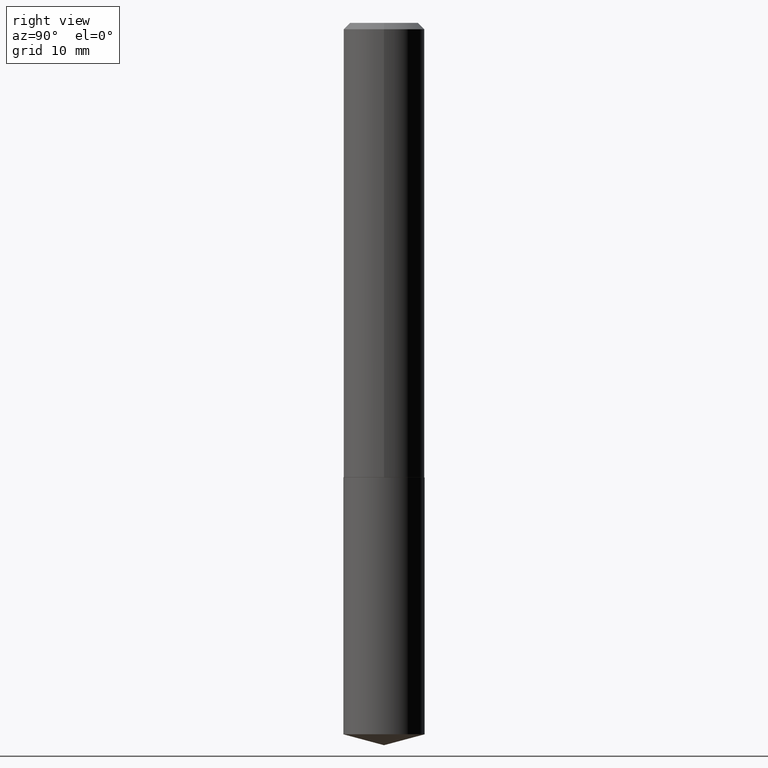
[diagram: clean part render]
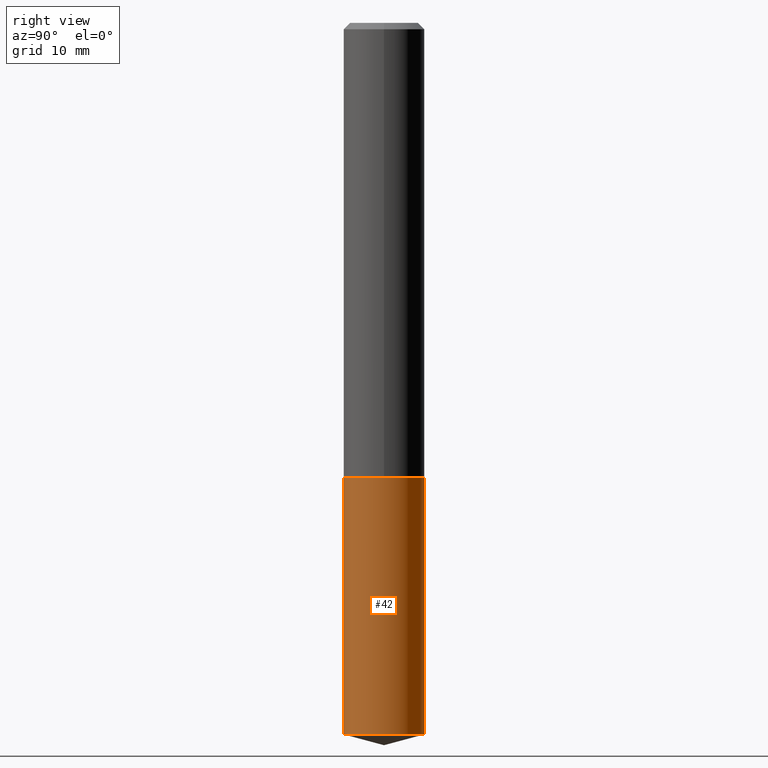
[diagram: same view with one face highlighted and labeled with its STEP entity id]
A machine part, right view. The second image highlights one B-rep face of the part: STEP entity #42.
In plain terms, the highlighted cylindrical surface (partial cylindrical patch) has radius 5 mm, axis along (-0, 0, 1).
Its self-contained STEP definition (entity closure, byte-faithful):
#4 = CARTESIAN_POINT ( 'NONE',  ( 5.391525076996369035E-29, -7.697668907747481548E-15, -2.204699999999999438 ) ) ;
#24 = ORIENTED_EDGE ( 'NONE', *, *, #242, .T. ) ;
#30 = DIRECTION ( 'NONE',  ( -6.982962677686265133E-15, -1.000000000000000000, 2.775563112689116301E-15 ) ) ;
#32 = DIRECTION ( 'NONE',  ( -6.982962677686265133E-15, -1.000000000000000000, 4.163344669033674845E-15 ) ) ;
#37 = CYLINDRICAL_SURFACE ( 'NONE', #89, 0.1968500000000000250 ) ;
#42 = ADVANCED_FACE ( 'NONE', ( #153 ), #37, .T. ) ;
#53 = CIRCLE ( 'NONE', #275, 0.1968500000000000250 ) ;
#65 = VERTEX_POINT ( 'NONE', #148 ) ;
#69 = DIRECTION ( 'NONE',  ( -2.445539438207697497E-29, 3.491380189766713232E-15, 1.000000000000000000 ) ) ;
#70 = VECTOR ( 'NONE', #170, 39.37007874015748143 ) ;
#78 = VECTOR ( 'NONE', #110, 39.37007874015748143 ) ;
#89 = AXIS2_PLACEMENT_3D ( 'NONE', #124, #322, #32 ) ;
#91 = CARTESIAN_POINT ( 'NONE',  ( -1.374596203102487571E-15, -0.1968500000000076855, -2.204699999999998550 ) ) ;
#95 = DIRECTION ( 'NONE',  ( -6.982962677686265133E-15, -1.000000000000000000, 4.163344669033674845E-15 ) ) ;
#100 = EDGE_CURVE ( 'NONE', #374, #65, #293, .T. ) ;
#110 = DIRECTION ( 'NONE',  ( -2.445539438207697497E-29, 3.491380189766713232E-15, 1.000000000000000000 ) ) ;
#124 = CARTESIAN_POINT ( 'NONE',  ( 5.391525076996369035E-29, -7.697668907747481548E-15, -2.204699999999999438 ) ) ;
#137 = EDGE_CURVE ( 'NONE', #378, #340, #53, .T. ) ;
#148 = CARTESIAN_POINT ( 'NONE',  ( 1.398703375343841999E-15, 0.1968499999999880623, -3.451154201469933902 ) ) ;
#153 = FACE_OUTER_BOUND ( 'NONE', #345, .T. ) ;
#170 = DIRECTION ( 'NONE',  ( -2.445539438207697497E-29, 3.491380189766713232E-15, 1.000000000000000000 ) ) ;
#172 = AXIS2_PLACEMENT_3D ( 'NONE', #290, #69, #30 ) ;
#189 = CARTESIAN_POINT ( 'NONE',  ( 1.398703375343810839E-15, 0.1968499999999923367, -2.204700000000000326 ) ) ;
#211 = DIRECTION ( 'NONE',  ( -2.445539438207697497E-29, 3.491380189766713232E-15, 1.000000000000000000 ) ) ;
#221 = LINE ( 'NONE', #189, #78 ) ;
#242 = EDGE_CURVE ( 'NONE', #65, #340, #221, .T. ) ;
#252 = ORIENTED_EDGE ( 'NONE', *, *, #137, .F. ) ;
#275 = AXIS2_PLACEMENT_3D ( 'NONE', #4, #211, #95 ) ;
#290 = CARTESIAN_POINT ( 'NONE',  ( 8.439777984610776122E-29, -1.204951441421109613E-14, -3.451154201469933458 ) ) ;
#291 = ORIENTED_EDGE ( 'NONE', *, *, #100, .T. ) ;
#293 = CIRCLE ( 'NONE', #172, 0.1968500000000000250 ) ;
#298 = ORIENTED_EDGE ( 'NONE', *, *, #342, .F. ) ;
#313 = LINE ( 'NONE', #91, #70 ) ;
#322 = DIRECTION ( 'NONE',  ( -2.445539438207697497E-29, 3.491380189766713232E-15, 1.000000000000000000 ) ) ;
#338 = CARTESIAN_POINT ( 'NONE',  ( -1.374596203102457792E-15, -0.1968500000000121264, -3.451154201469932570 ) ) ;
#340 = VERTEX_POINT ( 'NONE', #346 ) ;
#341 = CARTESIAN_POINT ( 'NONE',  ( -1.374596203102487571E-15, -0.1968500000000076855, -2.204699999999998550 ) ) ;
#342 = EDGE_CURVE ( 'NONE', #374, #378, #313, .T. ) ;
#345 = EDGE_LOOP ( 'NONE', ( #291, #24, #252, #298 ) ) ;
#346 = CARTESIAN_POINT ( 'NONE',  ( 1.398703375343841801E-15, 0.1968499999999923367, -2.204700000000000326 ) ) ;
#374 = VERTEX_POINT ( 'NONE', #338 ) ;
#378 = VERTEX_POINT ( 'NONE', #341 ) ;